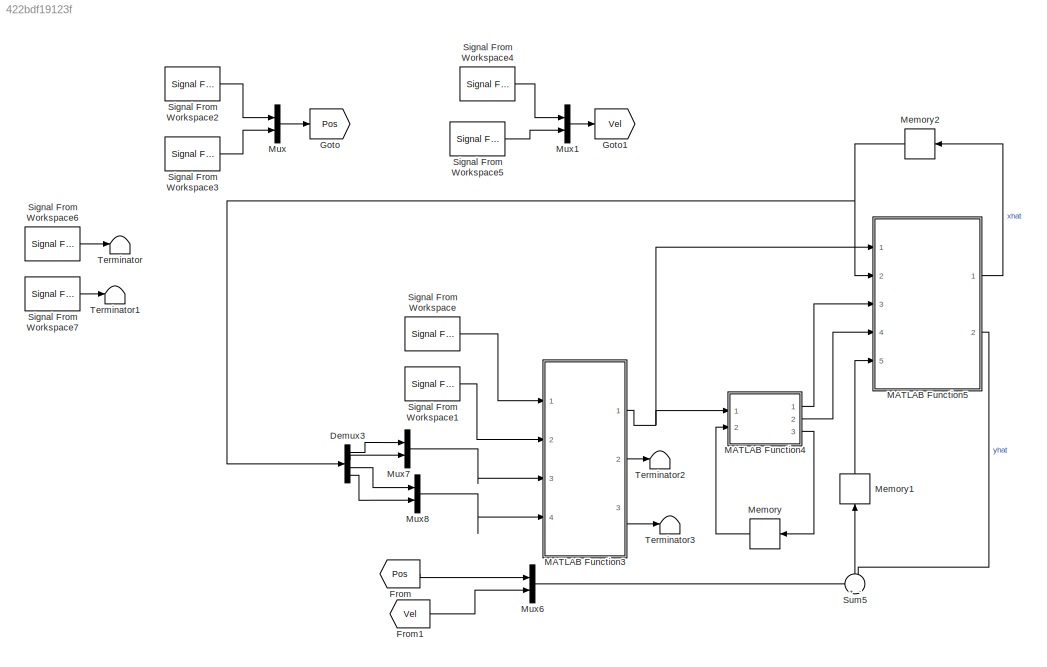
MODEL slx_422bdf19123f
KIND model
CONFIG AbsTol = auto
CONFIG EnableMultiTasking = off
CONFIG FixedStep = 0.001
CONFIG MaxStep = auto
CONFIG MinStep = auto
CONFIG RelTol = 1e-3
CONFIG SampleTimeConstraint = Unconstrained
CONFIG Solver = FixedStepDiscrete
CONFIG SolverName = FixedStepDiscrete
CONFIG StartTime = 0.0
CONFIG StopTime = 3
BLOCK [Demux] Demux3
  DisplayOption = bar
  Ports = [1, 4]
BLOCK [From] From
  GotoTag = Pos
BLOCK [From] From1
  GotoTag = Vel
BLOCK [Goto] Goto
  GotoTag = Pos
BLOCK [Goto] Goto1
  GotoTag = Vel
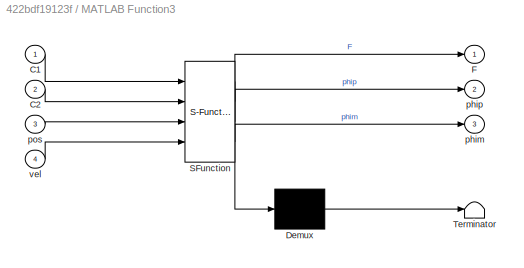
BLOCK [SubSystem] MATLAB Function3
  ErrorFcn = Stateflow.Translate.translate
  PermitHierarchicalResolution = ExplicitOnly
  Ports = [4, 3]
  RequestExecContextInheritance = off
  SFBlockType = MATLAB Function
  TreatAsAtomicUnit = on
  Variant = off
BLOCK [Demux] MATLAB Function3/ Demux 
  Outputs = 1
  Ports = [1, 1]
BLOCK [S-Function] MATLAB Function3/ SFunction 
  EnableBusSupport = on
  FunctionName = sf_sfun
  PortCounts = [4 4]
  Ports = [4, 4]
  SFcnIsStateOwnerBlock = off
  SFunctionDeploymentMode = off
  Tag = Stateflow S-Function EKFestes 20
BLOCK [Terminator] MATLAB Function3/ Terminator 
BLOCK [Inport] MATLAB Function3/C1
  IconDisplay = Port number
BLOCK [Inport] MATLAB Function3/C2
  IconDisplay = Port number
  Port = 2
BLOCK [Outport] MATLAB Function3/F
  IconDisplay = Port number
BLOCK [Outport] MATLAB Function3/phim
  IconDisplay = Port number
  Port = 3
BLOCK [Outport] MATLAB Function3/phip
  IconDisplay = Port number
  Port = 2
BLOCK [Inport] MATLAB Function3/pos
  IconDisplay = Port number
  Port = 3
BLOCK [Inport] MATLAB Function3/vel
  IconDisplay = Port number
  Port = 4
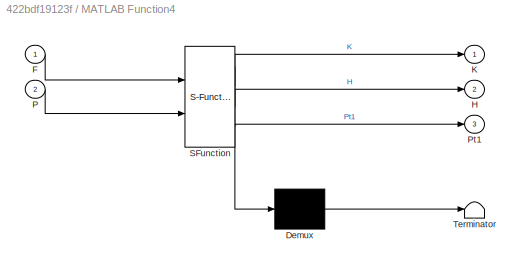
BLOCK [SubSystem] MATLAB Function4
  ErrorFcn = Stateflow.Translate.translate
  PermitHierarchicalResolution = ExplicitOnly
  Ports = [2, 3]
  RequestExecContextInheritance = off
  SFBlockType = MATLAB Function
  TreatAsAtomicUnit = on
  Variant = off
BLOCK [Demux] MATLAB Function4/ Demux 
  Outputs = 1
  Ports = [1, 1]
BLOCK [S-Function] MATLAB Function4/ SFunction 
  EnableBusSupport = on
  FunctionName = sf_sfun
  PortCounts = [2 4]
  Ports = [2, 4]
  SFcnIsStateOwnerBlock = off
  SFunctionDeploymentMode = off
  Tag = Stateflow S-Function EKFestes 23
BLOCK [Terminator] MATLAB Function4/ Terminator 
BLOCK [Inport] MATLAB Function4/F
  IconDisplay = Port number
BLOCK [Outport] MATLAB Function4/H
  IconDisplay = Port number
  Port = 2
BLOCK [Outport] MATLAB Function4/K
  IconDisplay = Port number
BLOCK [Inport] MATLAB Function4/P
  IconDisplay = Port number
  Port = 2
BLOCK [Outport] MATLAB Function4/Pt1
  IconDisplay = Port number
  Port = 3
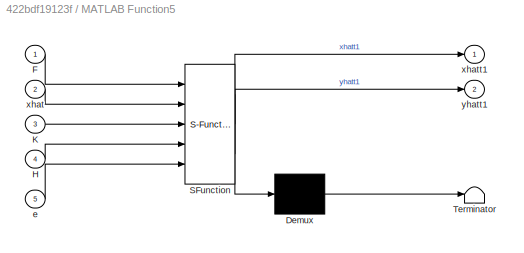
BLOCK [SubSystem] MATLAB Function5
  ErrorFcn = Stateflow.Translate.translate
  PermitHierarchicalResolution = ExplicitOnly
  Ports = [5, 2]
  RequestExecContextInheritance = off
  SFBlockType = MATLAB Function
  TreatAsAtomicUnit = on
  Variant = off
BLOCK [Demux] MATLAB Function5/ Demux 
  Outputs = 1
  Ports = [1, 1]
BLOCK [S-Function] MATLAB Function5/ SFunction 
  EnableBusSupport = on
  FunctionName = sf_sfun
  PortCounts = [5 3]
  Ports = [5, 3]
  SFcnIsStateOwnerBlock = off
  SFunctionDeploymentMode = off
  Tag = Stateflow S-Function EKFestes 24
BLOCK [Terminator] MATLAB Function5/ Terminator 
BLOCK [Inport] MATLAB Function5/F
  IconDisplay = Port number
BLOCK [Inport] MATLAB Function5/H
  IconDisplay = Port number
  Port = 4
BLOCK [Inport] MATLAB Function5/K
  IconDisplay = Port number
  Port = 3
BLOCK [Inport] MATLAB Function5/e
  IconDisplay = Port number
  Port = 5
BLOCK [Inport] MATLAB Function5/xhat
  IconDisplay = Port number
  Port = 2
BLOCK [Outport] MATLAB Function5/xhatt1
  IconDisplay = Port number
BLOCK [Outport] MATLAB Function5/yhatt1
  IconDisplay = Port number
  Port = 2
BLOCK [Memory] Memory
  X0 = eye(4)
BLOCK [Memory] Memory1
  X0 = zeros(4,1)
BLOCK [Memory] Memory2
  X0 = [1.75; 1.39; 0;0]
BLOCK [Mux] Mux
  DisplayOption = bar
  Inputs = 2
  Ports = [2, 1]
BLOCK [Mux] Mux1
  DisplayOption = bar
  Inputs = 2
  Ports = [2, 1]
BLOCK [Mux] Mux6
  DisplayOption = bar
  Inputs = 2
  Ports = [2, 1]
BLOCK [Mux] Mux7
  DisplayOption = bar
  Inputs = 2
  Ports = [2, 1]
BLOCK [Mux] Mux8
  DisplayOption = bar
  Inputs = 2
  Ports = [2, 1]
BLOCK [Reference] Signal From Workspace  REF=dspsrcs4/Signal From
Workspace
  Ports = [0, 1]
  SourceBlock = dspsrcs4/Signal From\nWorkspace
  SourceProductBaseCode = DS
  SourceProductName = DSP System Toolbox
  SourceType = Signal From Workspace
BLOCK [Reference] Signal From Workspace1  REF=dspsrcs4/Signal From
Workspace
  Ports = [0, 1]
  SourceBlock = dspsrcs4/Signal From\nWorkspace
  SourceProductBaseCode = DS
  SourceProductName = DSP System Toolbox
  SourceType = Signal From Workspace
BLOCK [Reference] Signal From Workspace2  REF=dspsrcs4/Signal From
Workspace
  Ports = [0, 1]
  SourceBlock = dspsrcs4/Signal From\nWorkspace
  SourceProductBaseCode = DS
  SourceProductName = DSP System Toolbox
  SourceType = Signal From Workspace
BLOCK [Reference] Signal From Workspace3  REF=dspsrcs4/Signal From
Workspace
  Ports = [0, 1]
  SourceBlock = dspsrcs4/Signal From\nWorkspace
  SourceProductBaseCode = DS
  SourceProductName = DSP System Toolbox
  SourceType = Signal From Workspace
BLOCK [Reference] Signal From Workspace4  REF=dspsrcs4/Signal From
Workspace
  Ports = [0, 1]
  SourceBlock = dspsrcs4/Signal From\nWorkspace
  SourceProductBaseCode = DS
  SourceProductName = DSP System Toolbox
  SourceType = Signal From Workspace
BLOCK [Reference] Signal From Workspace5  REF=dspsrcs4/Signal From
Workspace
  Ports = [0, 1]
  SourceBlock = dspsrcs4/Signal From\nWorkspace
  SourceProductBaseCode = DS
  SourceProductName = DSP System Toolbox
  SourceType = Signal From Workspace
BLOCK [Reference] Signal From Workspace6  REF=dspsrcs4/Signal From
Workspace
  Ports = [0, 1]
  SourceBlock = dspsrcs4/Signal From\nWorkspace
  SourceProductBaseCode = DS
  SourceProductName = DSP System Toolbox
  SourceType = Signal From Workspace
BLOCK [Reference] Signal From Workspace7  REF=dspsrcs4/Signal From
Workspace
  Ports = [0, 1]
  SourceBlock = dspsrcs4/Signal From\nWorkspace
  SourceProductBaseCode = DS
  SourceProductName = DSP System Toolbox
  SourceType = Signal From Workspace
BLOCK [Sum] Sum5
  IconShape = round
  InputSameDT = off
  Inputs = +|-
  OutDataTypeStr = Inherit: Inherit via internal rule
  Ports = [2, 1]
  SaturateOnIntegerOverflow = off
BLOCK [Terminator] Terminator
BLOCK [Terminator] Terminator1
BLOCK [Terminator] Terminator2
BLOCK [Terminator] Terminator3
LINE Demux3:1 -> Mux7:1
LINE Demux3:2 -> Mux7:2
LINE Demux3:3 -> Mux8:1
LINE Demux3:4 -> Mux8:2
LINE From1:1 -> Mux6:2
LINE From:1 -> Mux6:1
NET MATLAB Function3:1 -> MATLAB Function4:1, MATLAB Function5:1
LINE MATLAB Function3:2 -> Terminator2:1
LINE MATLAB Function3:3 -> Terminator3:1
LINE MATLAB Function4:1 -> MATLAB Function5:3
LINE MATLAB Function4:2 -> MATLAB Function5:4
LINE MATLAB Function4:3 -> Memory:1
LINE MATLAB Function5:1 -> Memory2:1
LINE MATLAB Function5:2 -> Sum5:2
LINE Memory1:1 -> MATLAB Function5:5
NET Memory2:1 -> Demux3:1, MATLAB Function5:2
LINE Memory:1 -> MATLAB Function4:2
LINE Mux1:1 -> Goto1:1
LINE Mux6:1 -> Sum5:1
LINE Mux7:1 -> MATLAB Function3:3
LINE Mux8:1 -> MATLAB Function3:4
LINE Mux:1 -> Goto:1
LINE Signal From Workspace1:1 -> MATLAB Function3:2
LINE Signal From Workspace2:1 -> Mux:1
LINE Signal From Workspace3:1 -> Mux:2
LINE Signal From Workspace4:1 -> Mux1:1
LINE Signal From Workspace5:1 -> Mux1:2
LINE Signal From Workspace6:1 -> Terminator:1
LINE Signal From Workspace7:1 -> Terminator1:1
LINE Signal From Workspace:1 -> MATLAB Function3:1
LINE Sum5:1 -> Memory1:1
note: NET lines group one-source signal fan-out (src -> all destinations, sorted); 1:1 wires keep LINE
CHART MATLAB Function3 states=1 transitions=1
  STATE_LABEL 'eML_blk_kernel()'
  STATE_LABEL 'SCRIPT:\nfunction [F,phip,phim] = fcn(C1,C2,pos,vel)\n\n% velocità [asse B, asse A]\n\ndt = 0.001;\ndeltaXi = 1e-5;\nF = zeros(4);\nIdent = eye(4);\n\n%% Calcolo phi e F\n\n    \n    for i = 1:4\n      fp = [pos;vel]+deltaXi*Ident(:,i);\n      fm = [pos;vel]-deltaXi*Ident(:,i);\n      \n      [Mp,Kp] = DinamicaKalman(fp);\n      [Mm,Km] = DinamicaKalman(fm);\n      \n      \nphip = [zeros(2), eye(2); zeros(2), -Mp^-1*...<+197ch>'
CHART MATLAB Function4 states=1 transitions=1
  STATE_LABEL 'eML_blk_kernel()'
  STATE_LABEL "SCRIPT:\nfunction [K,H,Pt1] = fcn(F,P)\nv1 = 1e-5;\nv2 = 1e-5;\nH = eye(4);\n\nK = F*P*H'*(H*P*H'+v2)^-1;\n\nPt1 = F*P*F'-K*(H*P*H'+v2)*K'+v1;\n\nend\n "
CHART MATLAB Function5 states=1 transitions=1
  STATE_LABEL 'eML_blk_kernel()'
  STATE_LABEL 'SCRIPT:\nfunction [xhatt1, yhatt1] = fcn(F,xhat,K,H,e)\n\nxhatt1 = F*xhat+K*e;\n\nyhatt1 = H*xhatt1;\n\nend'
